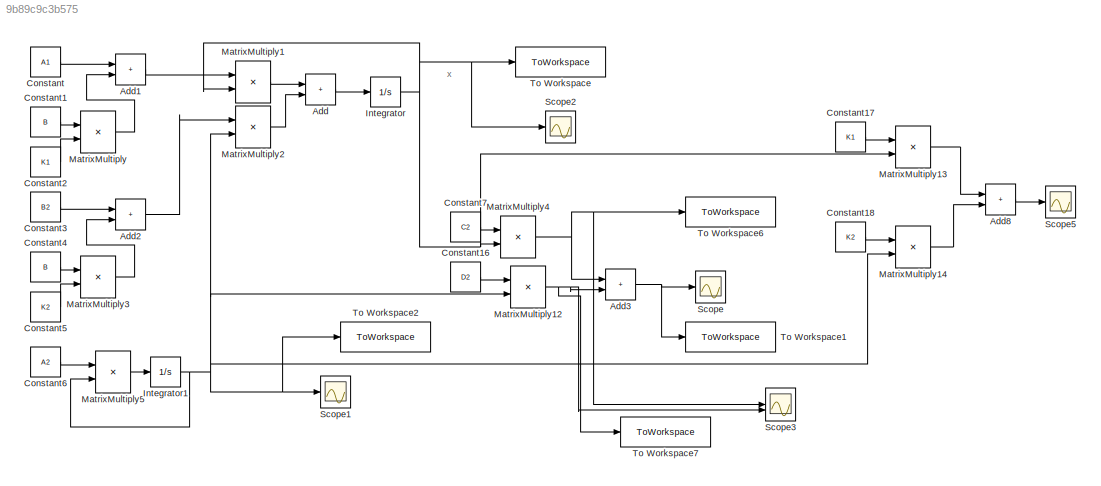
MODEL slx_9b89c9c3b575
KIND model
CONFIG AbsTol = auto
CONFIG EnableMultiTasking = off
CONFIG FixedStep = 0.001
CONFIG MaxStep = auto
CONFIG MinStep = auto
CONFIG RelTol = 1e-3
CONFIG SampleTimeConstraint = Unconstrained
CONFIG SolverName = FixedStepAuto
CONFIG StartTime = 0.0
CONFIG StopTime = 10
BLOCK [Sum] Add
  IconShape = rectangular
BLOCK [Sum] Add1
  IconShape = rectangular
BLOCK [Sum] Add2
  IconShape = rectangular
BLOCK [Sum] Add3
  IconShape = rectangular
BLOCK [Sum] Add8
  IconShape = rectangular
BLOCK [Constant] Constant
  Value = A1
  VectorParams1D = off
BLOCK [Constant] Constant1
  Value = B
  VectorParams1D = off
BLOCK [Constant] Constant16
  Value = D2
  VectorParams1D = off
BLOCK [Constant] Constant17
  Value = K1
  VectorParams1D = off
BLOCK [Constant] Constant18
  Value = K2
  VectorParams1D = off
BLOCK [Constant] Constant2
  Value = K1
  VectorParams1D = off
BLOCK [Constant] Constant3
  Value = B2
  VectorParams1D = off
BLOCK [Constant] Constant4
  Value = B
  VectorParams1D = off
BLOCK [Constant] Constant5
  Value = K2
  VectorParams1D = off
BLOCK [Constant] Constant6
  Value = A2
  VectorParams1D = off
BLOCK [Constant] Constant7
  Value = C2
  VectorParams1D = off
BLOCK [Integrator] Integrator
  InitialCondition = x0
BLOCK [Integrator] Integrator1
  InitialCondition = w0
BLOCK [Product] MatrixMultiply
  Multiplication = Matrix(*)
BLOCK [Product] MatrixMultiply1
  Multiplication = Matrix(*)
BLOCK [Product] MatrixMultiply12
  Multiplication = Matrix(*)
BLOCK [Product] MatrixMultiply13
  Multiplication = Matrix(*)
BLOCK [Product] MatrixMultiply14
  Multiplication = Matrix(*)
BLOCK [Product] MatrixMultiply2
  Multiplication = Matrix(*)
BLOCK [Product] MatrixMultiply3
  Multiplication = Matrix(*)
BLOCK [Product] MatrixMultiply4
  Multiplication = Matrix(*)
BLOCK [Product] MatrixMultiply5
  Multiplication = Matrix(*)
BLOCK [Scope] Scope
  Floating = off
  NumInputPorts = 1
  ScopeSpecificationString = Simulink.scopes.TimeScopeBlockCfg('CurrentConfiguration', extmgr.ConfigurationSet(extmgr.Configuration('Core','General UI',true),extmgr.Configuration('Core','Source UI',true),extmgr.Configuration('Sources','WiredSimulink',true),extmgr.Configuration('Visuals','Time Domain',true,'SerializedDisplays',{struct('MinYLimReal','-0.24186','MaxYLimReal','0.95279','YLabelReal','','MinYLimMag','0.00000','MaxY...<+1324ch>
BLOCK [Scope] Scope1
  Floating = off
  NumInputPorts = 1
  ScopeSpecificationString = Simulink.scopes.TimeScopeBlockCfg('CurrentConfiguration', extmgr.ConfigurationSet(extmgr.Configuration('Core','General UI',true),extmgr.Configuration('Core','Source UI',true),extmgr.Configuration('Sources','WiredSimulink',true,'DataLoggingVariableName','ScopeData1'),extmgr.Configuration('Visuals','Time Domain',true,'SerializedDisplays',{struct('MinYLimReal','-1.25','MaxYLimReal','1.25','YLabelReal...<+1434ch>
BLOCK [Scope] Scope2
  Floating = off
  NumInputPorts = 1
  ScopeSpecificationString = Simulink.scopes.TimeScopeBlockCfg('CurrentConfiguration', extmgr.ConfigurationSet(extmgr.Configuration('Core','General UI',true),extmgr.Configuration('Core','Source UI',true),extmgr.Configuration('Sources','WiredSimulink',true,'DataLoggingVariableName','ScopeData1'),extmgr.Configuration('Visuals','Time Domain',true,'SerializedDisplays',{struct('MinYLimReal','-12.38842','MaxYLimReal','10.10368','YL...<+1422ch>
BLOCK [Scope] Scope3
  Floating = off
  NumInputPorts = 2
  ScopeSpecificationString = Simulink.scopes.TimeScopeBlockCfg('CurrentConfiguration', extmgr.ConfigurationSet(extmgr.Configuration('Core','General UI',true),extmgr.Configuration('Core','Source UI',true),extmgr.Configuration('Sources','WiredSimulink',true,'DataLoggingVariableName','ScopeData2'),extmgr.Configuration('Visuals','Time Domain',true,'SerializedDisplays',{struct('MinYLimReal','-1.95619','MaxYLimReal','1.91454','YLab...<+1393ch>
BLOCK [Scope] Scope5
  Floating = off
  NumInputPorts = 1
  ScopeSpecificationString = Simulink.scopes.TimeScopeBlockCfg('CurrentConfiguration', extmgr.ConfigurationSet(extmgr.Configuration('Core','General UI',true),extmgr.Configuration('Core','Source UI',true),extmgr.Configuration('Sources','WiredSimulink',true,'DataLoggingVariableName','ScopeData4'),extmgr.Configuration('Visuals','Time Domain',true,'SerializedDisplays',{struct('MinYLimReal','-474.26181','MaxYLimReal','405.71554','...<+1377ch>
BLOCK [ToWorkspace] To Workspace
  FixptAsFi = on
  MaxDataPoints = inf
  SampleTime = -1
  SaveFormat = Timeseries
  VariableName = x
BLOCK [ToWorkspace] To Workspace1
  FixptAsFi = on
  MaxDataPoints = inf
  SampleTime = -1
  SaveFormat = Timeseries
  VariableName = z
BLOCK [ToWorkspace] To Workspace2
  FixptAsFi = on
  MaxDataPoints = inf
  SampleTime = -1
  SaveFormat = Timeseries
  VariableName = w
BLOCK [ToWorkspace] To Workspace6
  FixptAsFi = on
  MaxDataPoints = inf
  SampleTime = -1
  SaveFormat = Timeseries
  VariableName = xx
BLOCK [ToWorkspace] To Workspace7
  FixptAsFi = on
  MaxDataPoints = inf
  SampleTime = -1
  SaveFormat = Timeseries
  VariableName = ww
ANNOTATION (root): x
LINE Add1:1 -> MatrixMultiply1:1
LINE Add2:1 -> MatrixMultiply2:1
NET Add3:1 -> Scope:1, To Workspace1:1
LINE Add8:1 -> Scope5:1
LINE Add:1 -> Integrator:1
LINE Constant16:1 -> MatrixMultiply12:1
LINE Constant17:1 -> MatrixMultiply13:1
LINE Constant18:1 -> MatrixMultiply14:1
LINE Constant1:1 -> MatrixMultiply:1
LINE Constant2:1 -> MatrixMultiply:2
LINE Constant3:1 -> Add2:1
LINE Constant4:1 -> MatrixMultiply3:1
LINE Constant5:1 -> MatrixMultiply3:2
LINE Constant6:1 -> MatrixMultiply5:1
LINE Constant7:1 -> MatrixMultiply4:1
LINE Constant:1 -> Add1:1
NET Integrator1:1 -> MatrixMultiply12:2, MatrixMultiply14:2, MatrixMultiply2:2, MatrixMultiply5:2, Scope1:1, To Workspace2:1
NET Integrator:1 -> MatrixMultiply13:2, MatrixMultiply1:2, MatrixMultiply4:2, Scope2:1, To Workspace:1
NET MatrixMultiply12:1 -> Add3:2, Scope3:2, To Workspace7:1
LINE MatrixMultiply13:1 -> Add8:1
LINE MatrixMultiply14:1 -> Add8:2
LINE MatrixMultiply1:1 -> Add:1
LINE MatrixMultiply2:1 -> Add:2
LINE MatrixMultiply3:1 -> Add2:2
NET MatrixMultiply4:1 -> Add3:1, Scope3:1, To Workspace6:1
LINE MatrixMultiply5:1 -> Integrator1:1
LINE MatrixMultiply:1 -> Add1:2
note: NET lines group one-source signal fan-out (src -> all destinations, sorted); 1:1 wires keep LINE
